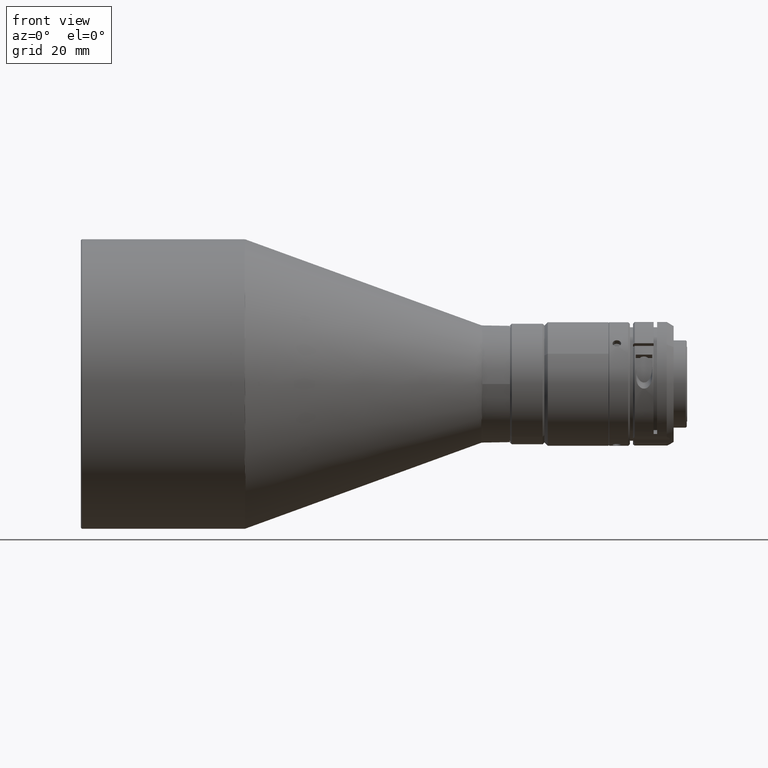
[diagram: clean part render]
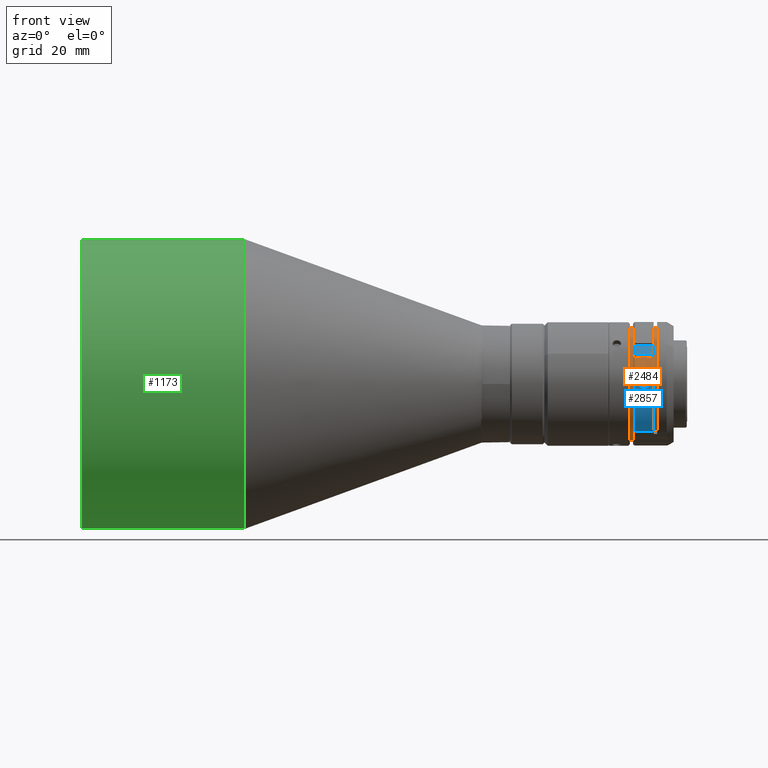
[diagram: same view with three faces highlighted in distinct colors, each labeled with its STEP entity id]
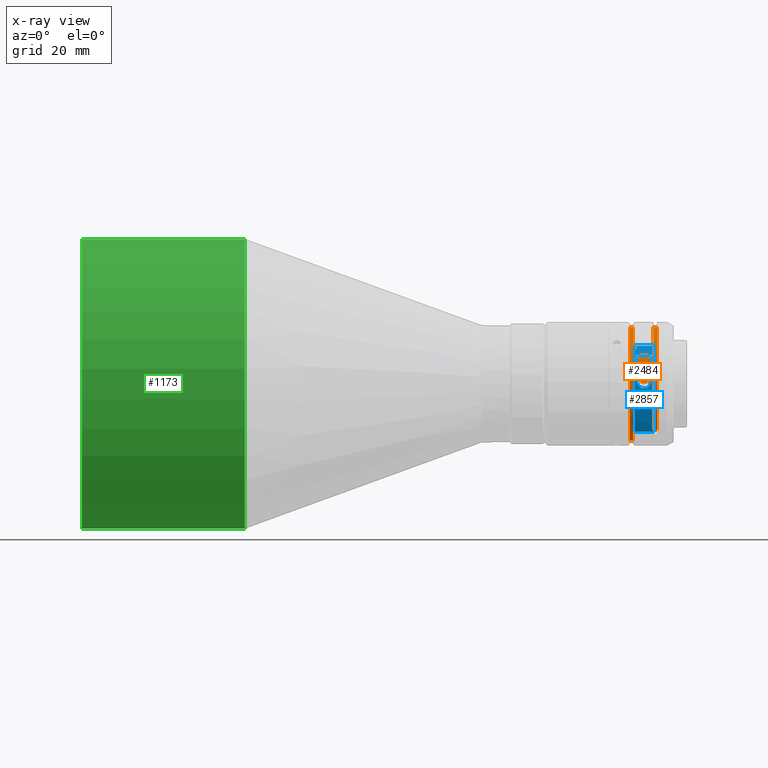
[diagram: x-ray of the same camera — body ghosted, the three highlighted faces saturated]
A machine part, front view with three faces highlighted in distinct colors.
The next image is the same camera in x-ray (body ghosted, the three faces saturated) — at least one of them is partly hidden behind the body in this view.
Their STEP definitions:

[orange] entity #2484 — the highlighted cylindrical surface (partial cylindrical patch) has radius 16.4872 mm, axis along (-1, -0, -0).
#25 = CARTESIAN_POINT ( 'NONE',  ( 159.3200000000000200, 2.019099587254256100E-015, -16.48719931869361600 ) ) ;
#35 = B_SPLINE_CURVE_WITH_KNOTS ( 'NONE', 3,
 ( #4201, #2227, #143, #130 ),
 .UNSPECIFIED., .F., .F.,
 ( 4, 4 ),
 ( 0.0000000000000000000, 0.003038825223688307700 ),
 .UNSPECIFIED. ) ;
#60 = CARTESIAN_POINT ( 'NONE',  ( 167.2200000000000000, 0.0000000000000000000, 16.48719931869361600 ) ) ;
#76 = EDGE_CURVE ( 'NONE', #4323, #2403, #2219, .T. ) ;
#122 = VECTOR ( 'NONE', #3050, 1000.000000000000000 ) ;
#127 = CARTESIAN_POINT ( 'NONE',  ( 164.5740415870512800, -16.46115465020259400, 0.9297886734848879200 ) ) ;
#130 = CARTESIAN_POINT ( 'NONE',  ( 164.6257721903837700, -14.65797262074225000, 7.547952041706538200 ) ) ;
#141 = CARTESIAN_POINT ( 'NONE',  ( 162.5286922909063800, -13.03375980337012100, 10.09697215814644400 ) ) ;
#143 = CARTESIAN_POINT ( 'NONE',  ( 164.4993311923400400, -14.19581476721842300, 8.445453393858962000 ) ) ;
#155 = VERTEX_POINT ( 'NONE', #288 ) ;
#156 = DIRECTION ( 'NONE',  ( 1.000000000000000000, 0.0000000000000000000, 0.0000000000000000000 ) ) ;
#187 = VERTEX_POINT ( 'NONE', #950 ) ;
#205 = CARTESIAN_POINT ( 'NONE',  ( 0.0000000000000000000, -14.65797262074225000, 7.547952041706537300 ) ) ;
#288 = CARTESIAN_POINT ( 'NONE',  ( 166.2199999982000000, -13.03375980337012200, 10.09697215814644800 ) ) ;
#291 = CARTESIAN_POINT ( 'NONE',  ( 0.0000000000000000000, 0.0000000000000000000, 16.48719931869361600 ) ) ;
#294 = CARTESIAN_POINT ( 'NONE',  ( 162.5286922909063800, -13.03375980337012100, 10.09697215814644400 ) ) ;
#303 = EDGE_CURVE ( 'NONE', #4193, #2052, #760, .T. ) ;
#327 = LINE ( 'NONE', #291, #4439 ) ;
#354 = ORIENTED_EDGE ( 'NONE', *, *, #1034, .T. ) ;
#358 = VERTEX_POINT ( 'NONE', #25 ) ;
#359 = DIRECTION ( 'NONE',  ( -1.000000000000000000, -0.0000000000000000000, -0.0000000000000000000 ) ) ;
#362 = DIRECTION ( 'NONE',  ( 0.0000000000000000000, 0.0000000000000000000, -1.000000000000000000 ) ) ;
#463 = CARTESIAN_POINT ( 'NONE',  ( 164.2746458527668900, -16.47251805357838000, 0.6981533381164485300 ) ) ;
#490 = LINE ( 'NONE', #205, #1797 ) ;
#501 = EDGE_CURVE ( 'NONE', #1315, #2762, #4321, .T. ) ;
#548 = VERTEX_POINT ( 'NONE', #3571 ) ;
#560 = DIRECTION ( 'NONE',  ( 0.0000000000000000000, 0.0000000000000000000, -1.000000000000000000 ) ) ;
#568 = CARTESIAN_POINT ( 'NONE',  ( 160.2200000000000000, -13.03375980337012200, 10.09697215814644800 ) ) ;
#571 = AXIS2_PLACEMENT_3D ( 'NONE', #3335, #638, #4036 ) ;
#626 = AXIS2_PLACEMENT_3D ( 'NONE', #894, #3603, #560 ) ;
#638 = DIRECTION ( 'NONE',  ( 1.000000000000000000, -0.0000000000000000000, 0.0000000000000000000 ) ) ;
#639 = VECTOR ( 'NONE', #1371, 1000.000000000000000 ) ;
#662 = ORIENTED_EDGE ( 'NONE', *, *, #1726, .T. ) ;
#668 = ORIENTED_EDGE ( 'NONE', *, *, #4030, .T. ) ;
#671 = CARTESIAN_POINT ( 'NONE',  ( 0.0000000000000000000, 2.019099587254256100E-015, -16.48719931869361600 ) ) ;
#711 = CARTESIAN_POINT ( 'NONE',  ( 164.6257721903837700, -14.65797262074225000, 7.547952041706538200 ) ) ;
#733 = EDGE_LOOP ( 'NONE', ( #842, #1377, #2412, #1492, #1141, #1877, #1380, #4317, #2880, #4351, #668, #3566, #2867, #991, #2721, #354, #2165, #3220, #862, #662 ) ) ;
#742 = VECTOR ( 'NONE', #156, 1000.000000000000000 ) ;
#760 = LINE ( 'NONE', #1359, #2383 ) ;
#778 = VERTEX_POINT ( 'NONE', #568 ) ;
#833 = CARTESIAN_POINT ( 'NONE',  ( 162.9472799859772700, -16.47914036335732700, 0.5162798844961608000 ) ) ;
#842 = ORIENTED_EDGE ( 'NONE', *, *, #3418, .F. ) ;
#849 = CARTESIAN_POINT ( 'NONE',  ( 163.3195510330318100, -16.48124270121820300, 0.4431530883863775700 ) ) ;
#857 = VECTOR ( 'NONE', #4373, 1000.000000000000000 ) ;
#862 = ORIENTED_EDGE ( 'NONE', *, *, #2888, .T. ) ;
#883 = CARTESIAN_POINT ( 'NONE',  ( 161.0200000000000100, -15.62801854515482500, 5.252882801531769500 ) ) ;
#894 = CARTESIAN_POINT ( 'NONE',  ( 160.2200000000000000, 0.0000000000000000000, 0.0000000000000000000 ) ) ;
#899 = DIRECTION ( 'NONE',  ( 0.0000000000000000000, 0.0000000000000000000, 1.000000000000000000 ) ) ;
#945 = EDGE_CURVE ( 'NONE', #548, #4323, #3059, .T. ) ;
#950 = CARTESIAN_POINT ( 'NONE',  ( 160.2200000000000000, 0.0000000000000000000, 16.48719931869361600 ) ) ;
#990 = CARTESIAN_POINT ( 'NONE',  ( 0.0000000000000000000, -14.65797262074225000, 7.547952041706537300 ) ) ;
#991 = ORIENTED_EDGE ( 'NONE', *, *, #3797, .T. ) ;
#1013 = AXIS2_PLACEMENT_3D ( 'NONE', #2037, #359, #4399 ) ;
#1034 = EDGE_CURVE ( 'NONE', #2149, #4193, #2020, .T. ) ;
#1090 = CARTESIAN_POINT ( 'NONE',  ( 165.6925591193513900, -16.14867244645946800, 3.359456579454701800 ) ) ;
#1099 = CARTESIAN_POINT ( 'NONE',  ( 164.3113077090936300, -13.03375980337012100, 10.09697215814644400 ) ) ;
#1141 = ORIENTED_EDGE ( 'NONE', *, *, #945, .F. ) ;
#1166 = EDGE_CURVE ( 'NONE', #4026, #778, #1960, .T. ) ;
#1188 = EDGE_CURVE ( 'NONE', #2052, #187, #2906, .T. ) ;
#1205 = VERTEX_POINT ( 'NONE', #1770 ) ;
#1298 = FACE_OUTER_BOUND ( 'NONE', #733, .T. ) ;
#1315 = VERTEX_POINT ( 'NONE', #1910 ) ;
#1318 = AXIS2_PLACEMENT_3D ( 'NONE', #1954, #3291, #899 ) ;
#1353 = CARTESIAN_POINT ( 'NONE',  ( 160.2200000000000000, 0.0000000000000000000, 0.0000000000000000000 ) ) ;
#1359 = CARTESIAN_POINT ( 'NONE',  ( 0.0000000000000000000, -12.39765437019051800, 10.86857430814305700 ) ) ;
#1371 = DIRECTION ( 'NONE',  ( -1.000000000000000000, -0.0000000000000000000, -0.0000000000000000000 ) ) ;
#1377 = ORIENTED_EDGE ( 'NONE', *, *, #1166, .T. ) ;
#1380 = ORIENTED_EDGE ( 'NONE', *, *, #1545, .F. ) ;
#1388 = DIRECTION ( 'NONE',  ( 0.0000000000000000000, 0.0000000000000000000, 1.000000000000000000 ) ) ;
#1391 = DIRECTION ( 'NONE',  ( -1.000000000000000000, -0.0000000000000000000, -0.0000000000000000000 ) ) ;
#1425 = CARTESIAN_POINT ( 'NONE',  ( 163.6956215938501500, -16.48065655091099300, 0.4656273447540606500 ) ) ;
#1481 = VERTEX_POINT ( 'NONE', #2354 ) ;
#1491 = CARTESIAN_POINT ( 'NONE',  ( 164.9135678973387400, -16.43682354117470400, 1.301769148797004700 ) ) ;
#1492 = ORIENTED_EDGE ( 'NONE', *, *, #76, .F. ) ;
#1494 = CARTESIAN_POINT ( 'NONE',  ( 162.2142278096162600, -14.65797262074225000, 7.547952041706538200 ) ) ;
#1541 = DIRECTION ( 'NONE',  ( 0.0000000000000000000, 0.0000000000000000000, 1.000000000000000000 ) ) ;
#1545 = EDGE_CURVE ( 'NONE', #2762, #2979, #2650, .T. ) ;
#1552 = CARTESIAN_POINT ( 'NONE',  ( 162.4902518448407100, -16.47135028845782000, 0.7317313870629339500 ) ) ;
#1560 = LINE ( 'NONE', #1876, #742 ) ;
#1561 = DIRECTION ( 'NONE',  ( 1.000000000000000000, -0.0000000000000000000, 0.0000000000000000000 ) ) ;
#1569 = CARTESIAN_POINT ( 'NONE',  ( 161.9539397515203200, -16.43971622478400000, 1.264250162738141300 ) ) ;
#1606 = CARTESIAN_POINT ( 'NONE',  ( 166.2200000000000000, 0.0000000000000000000, 16.48719931869361600 ) ) ;
#1616 = LINE ( 'NONE', #671, #639 ) ;
#1642 = AXIS2_PLACEMENT_3D ( 'NONE', #1353, #3052, #362 ) ;
#1654 = CARTESIAN_POINT ( 'NONE',  ( 0.0000000000000000000, 0.0000000000000000000, 16.48719931869361600 ) ) ;
#1726 = EDGE_CURVE ( 'NONE', #1481, #358, #2023, .T. ) ;
#1741 = CARTESIAN_POINT ( 'NONE',  ( 0.0000000000000000000, 0.0000000000000000000, 0.0000000000000000000 ) ) ;
#1757 = AXIS2_PLACEMENT_3D ( 'NONE', #2579, #1561, #1541 ) ;
#1770 = CARTESIAN_POINT ( 'NONE',  ( 167.2200000000000000, -9.696686251931646800, -13.33424227715737600 ) ) ;
#1784 = EDGE_CURVE ( 'NONE', #155, #3077, #2585, .T. ) ;
#1788 = CARTESIAN_POINT ( 'NONE',  ( 164.0540896062212300, -16.47712059967436500, 0.5794530634791420500 ) ) ;
#1797 = VECTOR ( 'NONE', #2946, 1000.000000000000000 ) ;
#1858 = DIRECTION ( 'NONE',  ( -1.000000000000000000, -0.0000000000000000000, -0.0000000000000000000 ) ) ;
#1876 = CARTESIAN_POINT ( 'NONE',  ( 0.0000000000000000000, -13.03375980337012200, 10.09697215814644800 ) ) ;
#1877 = ORIENTED_EDGE ( 'NONE', *, *, #3112, .F. ) ;
#1891 = CARTESIAN_POINT ( 'NONE',  ( 163.5692598444627800, -16.48113120635038300, 0.4472804436459118500 ) ) ;
#1907 = CARTESIAN_POINT ( 'NONE',  ( 161.3234726455134800, -16.28098041682922000, 2.610213299569115600 ) ) ;
#1910 = CARTESIAN_POINT ( 'NONE',  ( 165.8199999999999900, -14.65797262074225000, 7.547952041706537300 ) ) ;
#1954 = CARTESIAN_POINT ( 'NONE',  ( 159.3200000000000200, 0.0000000000000000000, 0.0000000000000000000 ) ) ;
#1960 = CIRCLE ( 'NONE', #626, 16.48719931869361600 ) ;
#2020 = CIRCLE ( 'NONE', #2422, 16.48719931869361600 ) ;
#2023 = CIRCLE ( 'NONE', #1318, 16.48719931869361600 ) ;
#2037 = CARTESIAN_POINT ( 'NONE',  ( 167.2200000000000000, 0.0000000000000000000, 0.0000000000000000000 ) ) ;
#2052 = VERTEX_POINT ( 'NONE', #4121 ) ;
#2132 = CARTESIAN_POINT ( 'NONE',  ( 0.0000000000000000000, -13.03375980337012200, 10.09697215814644800 ) ) ;
#2149 = VERTEX_POINT ( 'NONE', #1606 ) ;
#2165 = ORIENTED_EDGE ( 'NONE', *, *, #303, .T. ) ;
#2169 = CARTESIAN_POINT ( 'NONE',  ( 162.4912678220206900, -13.65768881026271600, 9.291568252616986700 ) ) ;
#2192 = CARTESIAN_POINT ( 'NONE',  ( 164.6635649561914900, -16.45603367268156000, 1.017695708175464700 ) ) ;
#2219 = B_SPLINE_CURVE_WITH_KNOTS ( 'NONE', 3,
 ( #1494, #2504, #2169, #141 ),
 .UNSPECIFIED., .F., .F.,
 ( 4, 4 ),
 ( 1.734723475976807100E-018, 0.003038825223688309000 ),
 .UNSPECIFIED. ) ;
#2227 = CARTESIAN_POINT ( 'NONE',  ( 164.3487321779793100, -13.65768881026271800, 9.291568252616986700 ) ) ;
#2248 = CARTESIAN_POINT ( 'NONE',  ( 162.8296302135859400, -16.47777283508363400, 0.5603670342746505100 ) ) ;
#2312 = EDGE_CURVE ( 'NONE', #3850, #1315, #490, .T. ) ;
#2354 = CARTESIAN_POINT ( 'NONE',  ( 159.3200000000000200, 0.0000000000000000000, 16.48719931869361600 ) ) ;
#2383 = VECTOR ( 'NONE', #1391, 1000.000000000000000 ) ;
#2394 = CARTESIAN_POINT ( 'NONE',  ( 0.0000000000000000000, -9.696686251931646800, -13.33424227715737600 ) ) ;
#2403 = VERTEX_POINT ( 'NONE', #294 ) ;
#2412 = ORIENTED_EDGE ( 'NONE', *, *, #3049, .T. ) ;
#2422 = AXIS2_PLACEMENT_3D ( 'NONE', #3776, #3809, #2734 ) ;
#2433 = CARTESIAN_POINT ( 'NONE',  ( 166.2200000000000000, -9.696686251931648600, -13.33424227715737600 ) ) ;
#2484 = ADVANCED_FACE ( 'NONE', ( #1298 ), #3472, .T. ) ;
#2504 = CARTESIAN_POINT ( 'NONE',  ( 162.3406688076599900, -14.19581476721841700, 8.445453393858958400 ) ) ;
#2518 = CARTESIAN_POINT ( 'NONE',  ( 164.3801784602484600, -16.46938961112883600, 0.7702760752280644100 ) ) ;
#2524 = DIRECTION ( 'NONE',  ( 0.0000000000000000000, -2.664535259100375700E-015, -1.000000000000000000 ) ) ;
#2541 = CARTESIAN_POINT ( 'NONE',  ( 160.2200000000000000, 2.019099587254256100E-015, -16.48719931869361600 ) ) ;
#2560 = CARTESIAN_POINT ( 'NONE',  ( 163.1927002568686800, -16.48088275312977300, 0.4572917142890949900 ) ) ;
#2579 = CARTESIAN_POINT ( 'NONE',  ( 165.8199999999999900, 0.0000000000000000000, 0.0000000000000000000 ) ) ;
#2585 = CIRCLE ( 'NONE', #571, 16.48719931869361600 ) ;
#2588 = CARTESIAN_POINT ( 'NONE',  ( 165.8199999999999900, -15.62801854474298400, 5.252882802757042700 ) ) ;
#2650 = B_SPLINE_CURVE_WITH_KNOTS ( 'NONE', 3,
 ( #4196, #4217, #3813, #1090, #3517, #3461, #3196, #3178, #1491, #2192, #127, #2518, #463, #1788, #2856, #1425, #1891, #849, #2560, #833, #2248, #1552, #3932, #1569, #3216, #4247, #2905, #1907, #3886, #4260, #2939, #3230, #3949, #883 ),
 .UNSPECIFIED., .F., .F.,
 ( 4, 2, 2, 2, 2, 2, 2, 2, 2, 2, 2, 2, 2, 2, 2, 2, 4 ),
 ( 4.261811985158505700E-012, 0.001471715567212966200, 0.002943431130164118900, 0.003679288911639684100, 0.004415146693115248400, 0.004783075583853004500, 0.005151004474590760600, 0.005518933365328516700, 0.005886862256066272000, 0.006254791146804028100, 0.006622720037541783400, 0.007358577819017296500, 0.008094435600492807000, 0.008830293381968317600, 0.009566151163443829800, 0.01030200894491934200, 0.01177372450787036800 ),
 .UNSPECIFIED. ) ;
#2721 = ORIENTED_EDGE ( 'NONE', *, *, #3728, .T. ) ;
#2727 = CIRCLE ( 'NONE', #1013, 16.48719931869361600 ) ;
#2734 = DIRECTION ( 'NONE',  ( 0.0000000000000000000, 0.0000000000000000000, 1.000000000000000000 ) ) ;
#2749 = CARTESIAN_POINT ( 'NONE',  ( 161.0200000000000100, -15.62801854515482500, 5.252882801531769500 ) ) ;
#2750 = DIRECTION ( 'NONE',  ( 1.000000000000000000, 0.0000000000000000000, 0.0000000000000000000 ) ) ;
#2762 = VERTEX_POINT ( 'NONE', #2588 ) ;
#2781 = LINE ( 'NONE', #2132, #4116 ) ;
#2856 = CARTESIAN_POINT ( 'NONE',  ( 163.9386196743382100, -16.47864225461139000, 0.5321640891720256200 ) ) ;
#2867 = ORIENTED_EDGE ( 'NONE', *, *, #3823, .T. ) ;
#2880 = ORIENTED_EDGE ( 'NONE', *, *, #2312, .F. ) ;
#2888 = EDGE_CURVE ( 'NONE', #187, #1481, #3803, .T. ) ;
#2905 = CARTESIAN_POINT ( 'NONE',  ( 161.4811693021302400, -16.34907532609872400, 2.142725550315296000 ) ) ;
#2906 = CIRCLE ( 'NONE', #1642, 16.48719931869361600 ) ;
#2939 = CARTESIAN_POINT ( 'NONE',  ( 161.1236427700644400, -16.09743347043194800, 3.572409752070579100 ) ) ;
#2946 = DIRECTION ( 'NONE',  ( 1.000000000000000000, 0.0000000000000000000, 0.0000000000000000000 ) ) ;
#2976 = VERTEX_POINT ( 'NONE', #60 ) ;
#2979 = VERTEX_POINT ( 'NONE', #2749 ) ;
#3049 = EDGE_CURVE ( 'NONE', #778, #2403, #2781, .T. ) ;
#3050 = DIRECTION ( 'NONE',  ( 1.000000000000000000, 0.0000000000000000000, 0.0000000000000000000 ) ) ;
#3052 = DIRECTION ( 'NONE',  ( -1.000000000000000000, -0.0000000000000000000, -0.0000000000000000000 ) ) ;
#3059 = LINE ( 'NONE', #990, #122 ) ;
#3073 = CARTESIAN_POINT ( 'NONE',  ( 162.2142278096162600, -14.65797262074225000, 7.547952041706538200 ) ) ;
#3077 = VERTEX_POINT ( 'NONE', #2433 ) ;
#3112 = EDGE_CURVE ( 'NONE', #2979, #548, #3523, .T. ) ;
#3178 = CARTESIAN_POINT ( 'NONE',  ( 165.0495151047157100, -16.41931342295349000, 1.510666007852637000 ) ) ;
#3196 = CARTESIAN_POINT ( 'NONE',  ( 165.2785695789043200, -16.37325363820094600, 1.947442006222969100 ) ) ;
#3216 = CARTESIAN_POINT ( 'NONE',  ( 161.8148409992556700, -16.42294023502109500, 1.470942681670688100 ) ) ;
#3220 = ORIENTED_EDGE ( 'NONE', *, *, #1188, .T. ) ;
#3230 = CARTESIAN_POINT ( 'NONE',  ( 161.0392933284081200, -15.92499510575483000, 4.297581860230011800 ) ) ;
#3291 = DIRECTION ( 'NONE',  ( 1.000000000000000000, -0.0000000000000000000, -0.0000000000000000000 ) ) ;
#3335 = CARTESIAN_POINT ( 'NONE',  ( 166.2200000000000000, 0.0000000000000000000, 0.0000000000000000000 ) ) ;
#3418 = EDGE_CURVE ( 'NONE', #4026, #358, #1616, .T. ) ;
#3425 = DIRECTION ( 'NONE',  ( 1.000000000000000000, 0.0000000000000000000, 0.0000000000000000000 ) ) ;
#3461 = CARTESIAN_POINT ( 'NONE',  ( 165.3724684020448600, -16.34445239753715700, 2.177909948666505900 ) ) ;
#3472 = CYLINDRICAL_SURFACE ( 'NONE', #4122, 16.48719931869361600 ) ;
#3517 = CARTESIAN_POINT ( 'NONE',  ( 165.6050296421245200, -16.23990831539737900, 2.884409378699208700 ) ) ;
#3523 = CIRCLE ( 'NONE', #3722, 16.48719931869361600 ) ;
#3539 = EDGE_CURVE ( 'NONE', #4424, #3850, #35, .T. ) ;
#3566 = ORIENTED_EDGE ( 'NONE', *, *, #1784, .T. ) ;
#3571 = CARTESIAN_POINT ( 'NONE',  ( 161.0200000000000100, -14.65797262074225000, 7.547952041706537300 ) ) ;
#3603 = DIRECTION ( 'NONE',  ( -1.000000000000000000, -0.0000000000000000000, -0.0000000000000000000 ) ) ;
#3722 = AXIS2_PLACEMENT_3D ( 'NONE', #3878, #1858, #2524 ) ;
#3728 = EDGE_CURVE ( 'NONE', #2976, #2149, #327, .T. ) ;
#3776 = CARTESIAN_POINT ( 'NONE',  ( 166.2200000000000000, 0.0000000000000000000, 0.0000000000000000000 ) ) ;
#3797 = EDGE_CURVE ( 'NONE', #1205, #2976, #2727, .T. ) ;
#3803 = LINE ( 'NONE', #1654, #857 ) ;
#3809 = DIRECTION ( 'NONE',  ( 1.000000000000000000, -0.0000000000000000000, 0.0000000000000000000 ) ) ;
#3813 = CARTESIAN_POINT ( 'NONE',  ( 165.8009142782937900, -15.92187349370786900, 4.308075526571410100 ) ) ;
#3823 = EDGE_CURVE ( 'NONE', #3077, #1205, #4278, .T. ) ;
#3850 = VERTEX_POINT ( 'NONE', #711 ) ;
#3878 = CARTESIAN_POINT ( 'NONE',  ( 161.0200000000000100, 0.0000000000000000000, 0.0000000000000000000 ) ) ;
#3886 = CARTESIAN_POINT ( 'NONE',  ( 161.2613282302976900, -16.24119807768848400, 2.848005814906239500 ) ) ;
#3932 = CARTESIAN_POINT ( 'NONE',  ( 162.2939820525080600, -16.46412942217311200, 0.8916503773023122200 ) ) ;
#3949 = CARTESIAN_POINT ( 'NONE',  ( 161.0200000000344900, -15.78776709956517300, 4.777609800931291100 ) ) ;
#3992 = DIRECTION ( 'NONE',  ( -1.000000000000000000, -0.0000000000000000000, -0.0000000000000000000 ) ) ;
#4026 = VERTEX_POINT ( 'NONE', #2541 ) ;
#4030 = EDGE_CURVE ( 'NONE', #4424, #155, #1560, .T. ) ;
#4036 = DIRECTION ( 'NONE',  ( 0.0000000000000000000, 0.0000000000000000000, 1.000000000000000000 ) ) ;
#4116 = VECTOR ( 'NONE', #3425, 1000.000000000000000 ) ;
#4121 = CARTESIAN_POINT ( 'NONE',  ( 160.2200000000000000, -12.39765438103296400, 10.86857429577520200 ) ) ;
#4122 = AXIS2_PLACEMENT_3D ( 'NONE', #1741, #4432, #1388 ) ;
#4193 = VERTEX_POINT ( 'NONE', #4393 ) ;
#4196 = CARTESIAN_POINT ( 'NONE',  ( 165.8199999999999900, -15.62801854474298400, 5.252882802757042700 ) ) ;
#4201 = CARTESIAN_POINT ( 'NONE',  ( 164.3113077090936300, -13.03375980337012100, 10.09697215814644400 ) ) ;
#4217 = CARTESIAN_POINT ( 'NONE',  ( 165.8200000001140200, -15.78632913862138000, 4.781887924760269500 ) ) ;
#4247 = CARTESIAN_POINT ( 'NONE',  ( 161.5776475154608000, -16.37758339373971900, 1.910863814335346900 ) ) ;
#4260 = CARTESIAN_POINT ( 'NONE',  ( 161.1613589843779800, -16.14949696536772100, 3.328873666276728600 ) ) ;
#4278 = LINE ( 'NONE', #2394, #4433 ) ;
#4317 = ORIENTED_EDGE ( 'NONE', *, *, #501, .F. ) ;
#4321 = CIRCLE ( 'NONE', #1757, 16.48719931869361600 ) ;
#4323 = VERTEX_POINT ( 'NONE', #3073 ) ;
#4351 = ORIENTED_EDGE ( 'NONE', *, *, #3539, .F. ) ;
#4373 = DIRECTION ( 'NONE',  ( -1.000000000000000000, -0.0000000000000000000, -0.0000000000000000000 ) ) ;
#4393 = CARTESIAN_POINT ( 'NONE',  ( 166.2200000000000000, -12.39765437019051600, 10.86857430814305500 ) ) ;
#4399 = DIRECTION ( 'NONE',  ( 0.0000000000000000000, 0.0000000000000000000, -1.000000000000000000 ) ) ;
#4424 = VERTEX_POINT ( 'NONE', #1099 ) ;
#4432 = DIRECTION ( 'NONE',  ( -1.000000000000000000, -0.0000000000000000000, -0.0000000000000000000 ) ) ;
#4433 = VECTOR ( 'NONE', #2750, 1000.000000000000000 ) ;
#4439 = VECTOR ( 'NONE', #3992, 1000.000000000000000 ) ;

[blue] entity #2857 — the highlighted cylindrical surface (partial cylindrical patch) has radius 18 mm, axis along (-1, 0, 0).
#11 = LINE ( 'NONE', #3245, #3635 ) ;
#104 = CARTESIAN_POINT ( 'NONE',  ( 163.8446297666830600, -17.95347758864933100, -1.295708654358598700 ) ) ;
#116 = CARTESIAN_POINT ( 'NONE',  ( 164.4296203718487600, -17.97130105658079900, -1.025264389598634900 ) ) ;
#129 = VERTEX_POINT ( 'NONE', #2690 ) ;
#132 = CARTESIAN_POINT ( 'NONE',  ( 164.7590153662531200, -17.98484314154965000, -0.7511630373598092700 ) ) ;
#138 = DIRECTION ( 'NONE',  ( -1.000000000000000000, 3.065186189258494200E-017, 3.718101010314700000E-017 ) ) ;
#217 = CARTESIAN_POINT ( 'NONE',  ( 165.5281410166115000, -17.99672367518818200, 0.5152064143788192000 ) ) ;
#370 = DIRECTION ( 'NONE',  ( 1.000000000000000000, -3.065186189258494200E-017, -3.718101010314700000E-017 ) ) ;
#394 = EDGE_CURVE ( 'NONE', #1600, #3403, #1131, .T. ) ;
#409 = CARTESIAN_POINT ( 'NONE',  ( 163.2030278698764500, -17.95029606407543100, -1.336739046783440600 ) ) ;
#476 = LINE ( 'NONE', #3924, #1672 ) ;
#478 = DIRECTION ( 'NONE',  ( -1.000000000000000000, -0.0000000000000000000, -0.0000000000000000000 ) ) ;
#534 = CIRCLE ( 'NONE', #581, 18.00000000000000700 ) ;
#553 = CARTESIAN_POINT ( 'NONE',  ( 165.6452336195875400, -17.98071982346806800, 0.9315014919335826700 ) ) ;
#581 = AXIS2_PLACEMENT_3D ( 'NONE', #602, #4039, #3567 ) ;
#602 = CARTESIAN_POINT ( 'NONE',  ( 161.0200000045000200, 2.758667568953311400E-016, 3.346290907610085900E-016 ) ) ;
#637 = CARTESIAN_POINT ( 'NONE',  ( 165.8200000010499800, -17.81041127891607100, 2.605618942949880200 ) ) ;
#655 = AXIS2_PLACEMENT_3D ( 'NONE', #1824, #3877, #1138 ) ;
#694 = CARTESIAN_POINT ( 'NONE',  ( 161.0200000022500100, -17.81041127947618800, 2.605618939121283200 ) ) ;
#740 = DIRECTION ( 'NONE',  ( 0.0000000000000000000, 0.6361054331796055500, 0.7716021499966070300 ) ) ;
#830 = AXIS2_PLACEMENT_3D ( 'NONE', #4157, #138, #2235 ) ;
#931 = CARTESIAN_POINT ( 'NONE',  ( 161.0200000022500100, -17.81041127947618800, 2.605618939121283200 ) ) ;
#932 = EDGE_CURVE ( 'NONE', #3825, #4251, #1897, .T. ) ;
#998 = DIRECTION ( 'NONE',  ( 0.0000000000000000000, 0.6361054331796055500, 0.7716021499966070300 ) ) ;
#1004 = ORIENTED_EDGE ( 'NONE', *, *, #1069, .F. ) ;
#1014 = CARTESIAN_POINT ( 'NONE',  ( 161.9383510115916900, -17.99104309243919200, -0.5934329940893073900 ) ) ;
#1017 = CARTESIAN_POINT ( 'NONE',  ( 170.0200000000000100, 0.0000000000000000000, 0.0000000000000000000 ) ) ;
#1068 = CYLINDRICAL_SURFACE ( 'NONE', #1507, 18.00000000000000400 ) ;
#1069 = EDGE_CURVE ( 'NONE', #2247, #1600, #11, .T. ) ;
#1131 = CIRCLE ( 'NONE', #655, 18.00000000000000400 ) ;
#1138 = DIRECTION ( 'NONE',  ( 0.0000000000000000000, 0.7716021499966070300, -0.6361054331796055500 ) ) ;
#1150 = ORIENTED_EDGE ( 'NONE', *, *, #394, .F. ) ;
#1153 = ORIENTED_EDGE ( 'NONE', *, *, #3707, .F. ) ;
#1392 = CARTESIAN_POINT ( 'NONE',  ( 166.2199999956999900, 1.164770753236257800E-016, 1.412878385518369500E-016 ) ) ;
#1498 = VERTEX_POINT ( 'NONE', #2051 ) ;
#1507 = AXIS2_PLACEMENT_3D ( 'NONE', #1017, #4080, #998 ) ;
#1540 = ORIENTED_EDGE ( 'NONE', *, *, #2949, .F. ) ;
#1600 = VERTEX_POINT ( 'NONE', #3594 ) ;
#1624 = FACE_OUTER_BOUND ( 'NONE', #4047, .T. ) ;
#1632 = EDGE_CURVE ( 'NONE', #1498, #129, #3109, .T. ) ;
#1672 = VECTOR ( 'NONE', #2018, 1000.000000000000000 ) ;
#1688 = CARTESIAN_POINT ( 'NONE',  ( 166.2199999956999900, -14.20153203603661900, 11.05967846862763800 ) ) ;
#1727 = CARTESIAN_POINT ( 'NONE',  ( 161.6878872642247400, -17.99911491975408500, -0.2483070235886900600 ) ) ;
#1775 = CARTESIAN_POINT ( 'NONE',  ( 166.2199999956999900, -11.44989779723289800, -13.88883869993892800 ) ) ;
#1824 = CARTESIAN_POINT ( 'NONE',  ( 160.7200000000000000, 0.0000000000000000000, 0.0000000000000000000 ) ) ;
#1868 = CARTESIAN_POINT ( 'NONE',  ( 164.9015138907262500, -17.99104067477618700, -0.5936681546033696400 ) ) ;
#1897 = B_SPLINE_CURVE_WITH_KNOTS ( 'NONE', 3,
 ( #931, #3332, #2030, #2716, #4389, #3070, #1727, #1014, #2416, #3791, #2819, #3120, #409, #2803, #104, #3168, #116, #132, #1868, #2593, #3968, #217, #553, #3979, #4322, #3311 ),
 .UNSPECIFIED., .F., .F.,
 ( 4, 2, 2, 2, 2, 2, 2, 2, 2, 2, 2, 2, 4 ),
 ( 6.566259535918892800E-012, 0.001266805065406357800, 0.002533610124246456400, 0.003167012653666523100, 0.003800415183086589400, 0.004433817712506656600, 0.005067220241926723300, 0.005700622771346790100, 0.006334025300766856800, 0.006967427830186924400, 0.007600830359606991100, 0.008867635418447089900, 0.01013444047728718900 ),
 .UNSPECIFIED. ) ;
#1976 = AXIS2_PLACEMENT_3D ( 'NONE', #1392, #370, #740 ) ;
#2015 = VECTOR ( 'NONE', #478, 1000.000000000000000 ) ;
#2018 = DIRECTION ( 'NONE',  ( 1.000000000000000000, -0.0000000000000000000, 0.0000000000000000000 ) ) ;
#2030 = CARTESIAN_POINT ( 'NONE',  ( 161.0497057696050000, -17.91821156932437000, 1.763827378813243000 ) ) ;
#2051 = CARTESIAN_POINT ( 'NONE',  ( 165.8200000021000200, -15.85011884489772500, 8.530752170976377600 ) ) ;
#2235 = DIRECTION ( 'NONE',  ( 0.0000000000000000000, 0.6361054331796055500, 0.7716021499966070300 ) ) ;
#2247 = VERTEX_POINT ( 'NONE', #1775 ) ;
#2357 = ORIENTED_EDGE ( 'NONE', *, *, #932, .F. ) ;
#2416 = CARTESIAN_POINT ( 'NONE',  ( 162.0806901089938200, -17.98485484815375900, -0.7509587438873490700 ) ) ;
#2430 = CIRCLE ( 'NONE', #830, 18.00000000000000400 ) ;
#2531 = CARTESIAN_POINT ( 'NONE',  ( 165.3699999999999800, -15.85011884372284500, 8.530752173159307000 ) ) ;
#2570 = EDGE_CURVE ( 'NONE', #4251, #1498, #2430, .T. ) ;
#2574 = CIRCLE ( 'NONE', #1976, 18.00000000000000400 ) ;
#2593 = CARTESIAN_POINT ( 'NONE',  ( 165.1527129731774200, -17.99913232413235100, -0.2474308340032173900 ) ) ;
#2690 = CARTESIAN_POINT ( 'NONE',  ( 161.0200000022500100, -15.85011884567113300, 8.530752170038224900 ) ) ;
#2716 = CARTESIAN_POINT ( 'NONE',  ( 161.1943604711551400, -17.98060717629776300, 0.9333586861385647600 ) ) ;
#2728 = CARTESIAN_POINT ( 'NONE',  ( 160.7200000000000000, -14.20153203608750300, 11.05967846866958700 ) ) ;
#2803 = CARTESIAN_POINT ( 'NONE',  ( 163.6329701456431800, -17.95025756864064400, -1.337255879260437200 ) ) ;
#2819 = CARTESIAN_POINT ( 'NONE',  ( 162.5930896688086600, -17.96417501451460600, -1.137821038105735600 ) ) ;
#2857 = ADVANCED_FACE ( 'NONE', ( #1624, #3310 ), #1068, .T. ) ;
#2949 = EDGE_CURVE ( 'NONE', #3845, #2247, #2574, .T. ) ;
#3070 = CARTESIAN_POINT ( 'NONE',  ( 161.5807920323128100, -18.00092742019381500, -0.06098599065459001800 ) ) ;
#3109 = LINE ( 'NONE', #2531, #2015 ) ;
#3120 = CARTESIAN_POINT ( 'NONE',  ( 162.9936194219142700, -17.95351415236060100, -1.295202782522628000 ) ) ;
#3168 = CARTESIAN_POINT ( 'NONE',  ( 164.2460108662269000, -17.96414110212139900, -1.138355351455030200 ) ) ;
#3245 = CARTESIAN_POINT ( 'NONE',  ( 170.0200000000000100, -11.44989779723290000, -13.88883869993893100 ) ) ;
#3310 = FACE_BOUND ( 'NONE', #3348, .T. ) ;
#3311 = CARTESIAN_POINT ( 'NONE',  ( 165.8200000010499800, -17.81041127891607100, 2.605618942949880200 ) ) ;
#3332 = CARTESIAN_POINT ( 'NONE',  ( 161.0199999997407500, -17.87217445881633200, 2.183443767319153600 ) ) ;
#3348 = EDGE_LOOP ( 'NONE', ( #2357, #4007, #3650, #4042 ) ) ;
#3403 = VERTEX_POINT ( 'NONE', #2728 ) ;
#3567 = DIRECTION ( 'NONE',  ( 0.0000000000000000000, 0.6361054331796067700, 0.7716021499966058100 ) ) ;
#3594 = CARTESIAN_POINT ( 'NONE',  ( 160.7200000000000000, -11.44989779723289800, -13.88883869993892800 ) ) ;
#3596 = EDGE_CURVE ( 'NONE', #129, #3825, #534, .T. ) ;
#3635 = VECTOR ( 'NONE', #3870, 1000.000000000000000 ) ;
#3650 = ORIENTED_EDGE ( 'NONE', *, *, #1632, .F. ) ;
#3707 = EDGE_CURVE ( 'NONE', #3403, #3845, #476, .T. ) ;
#3791 = CARTESIAN_POINT ( 'NONE',  ( 162.4111805210608000, -17.97126853278821200, -1.025889987570194600 ) ) ;
#3825 = VERTEX_POINT ( 'NONE', #694 ) ;
#3845 = VERTEX_POINT ( 'NONE', #1688 ) ;
#3870 = DIRECTION ( 'NONE',  ( -1.000000000000000000, 3.065186189258494200E-017, 3.718101010314700000E-017 ) ) ;
#3877 = DIRECTION ( 'NONE',  ( -1.000000000000000000, 0.0000000000000000000, -0.0000000000000000000 ) ) ;
#3924 = CARTESIAN_POINT ( 'NONE',  ( 165.3699999999999800, -14.20153203783933200, 11.05967846631280500 ) ) ;
#3968 = CARTESIAN_POINT ( 'NONE',  ( 165.2592315941426800, -18.00092138071918800, -0.06086557147332401900 ) ) ;
#3979 = CARTESIAN_POINT ( 'NONE',  ( 165.7902984925294200, -17.91827199658565600, 1.763380008933576300 ) ) ;
#4007 = ORIENTED_EDGE ( 'NONE', *, *, #3596, .F. ) ;
#4039 = DIRECTION ( 'NONE',  ( 1.000000000000000000, -3.065186189258494200E-017, -3.718101010314700000E-017 ) ) ;
#4042 = ORIENTED_EDGE ( 'NONE', *, *, #2570, .F. ) ;
#4047 = EDGE_LOOP ( 'NONE', ( #1004, #1540, #1153, #1150 ) ) ;
#4080 = DIRECTION ( 'NONE',  ( -1.000000000000000000, 3.065186189258494200E-017, 3.718101010314700000E-017 ) ) ;
#4157 = CARTESIAN_POINT ( 'NONE',  ( 165.8200000021000200, 1.287378198844878300E-016, 1.561602423551372400E-016 ) ) ;
#4251 = VERTEX_POINT ( 'NONE', #637 ) ;
#4322 = CARTESIAN_POINT ( 'NONE',  ( 165.8200000002883900, -17.87218748154824900, 2.183354752019652800 ) ) ;
#4389 = CARTESIAN_POINT ( 'NONE',  ( 161.3111355619710700, -17.99670101982255200, 0.5168960395316819500 ) ) ;

[green] entity #1173 — the highlighted cylindrical surface (partial cylindrical patch) has radius 42 mm, axis along (-1, 0, 0).
#177 = CARTESIAN_POINT ( 'NONE',  ( 47.46041055200000600, 5.143516556418883300E-015, -42.00000000000000000 ) ) ;
#202 = CARTESIAN_POINT ( 'NONE',  ( 47.46041055261320500, -4.307171998821954500E-009, -41.99999999999982900 ) ) ;
#353 = ORIENTED_EDGE ( 'NONE', *, *, #3639, .F. ) ;
#601 = CIRCLE ( 'NONE', #2002, 41.99999999999999300 ) ;
#625 = VERTEX_POINT ( 'NONE', #202 ) ;
#685 = CARTESIAN_POINT ( 'NONE',  ( 47.46041055261317600, 0.0000000000000000000, 0.0000000000000000000 ) ) ;
#695 = CYLINDRICAL_SURFACE ( 'NONE', #3866, 42.00000000000000000 ) ;
#727 = VERTEX_POINT ( 'NONE', #4154 ) ;
#728 = ORIENTED_EDGE ( 'NONE', *, *, #2487, .F. ) ;
#731 = EDGE_CURVE ( 'NONE', #727, #2924, #601, .T. ) ;
#936 = DIRECTION ( 'NONE',  ( 0.0000000000000000000, 0.0000000000000000000, 1.000000000000000000 ) ) ;
#965 = CARTESIAN_POINT ( 'NONE',  ( 47.46041055245989800, 0.0000000000000000000, 41.99999999999982900 ) ) ;
#973 = FACE_OUTER_BOUND ( 'NONE', #1909, .T. ) ;
#1018 = LINE ( 'NONE', #177, #1228 ) ;
#1024 = DIRECTION ( 'NONE',  ( 1.000000000000000000, -8.260587980822767000E-017, -0.0000000000000000000 ) ) ;
#1173 = ADVANCED_FACE ( 'NONE', ( #973 ), #695, .T. ) ;
#1219 = DIRECTION ( 'NONE',  ( 0.0000000000000000000, 0.0000000000000000000, 1.000000000000000000 ) ) ;
#1228 = VECTOR ( 'NONE', #3018, 1000.000000000000000 ) ;
#1241 = DIRECTION ( 'NONE',  ( -1.000000000000000000, 0.0000000000000000000, 0.0000000000000000000 ) ) ;
#1308 = DIRECTION ( 'NONE',  ( -1.000000000000000000, 0.0000000000000000000, 0.0000000000000000000 ) ) ;
#1909 = EDGE_LOOP ( 'NONE', ( #353, #728, #3508, #3609 ) ) ;
#2002 = AXIS2_PLACEMENT_3D ( 'NONE', #3294, #1241, #936 ) ;
#2222 = EDGE_CURVE ( 'NONE', #2947, #2924, #4124, .T. ) ;
#2291 = CARTESIAN_POINT ( 'NONE',  ( 47.46041055200000600, 0.0000000000000000000, 0.0000000000000000000 ) ) ;
#2487 = EDGE_CURVE ( 'NONE', #2947, #625, #3155, .T. ) ;
#2758 = DIRECTION ( 'NONE',  ( 0.0000000000000000000, 1.000000000000000000, 0.0000000000000000000 ) ) ;
#2841 = AXIS2_PLACEMENT_3D ( 'NONE', #685, #1024, #2758 ) ;
#2924 = VERTEX_POINT ( 'NONE', #4392 ) ;
#2947 = VERTEX_POINT ( 'NONE', #965 ) ;
#2961 = DIRECTION ( 'NONE',  ( -1.000000000000000000, 0.0000000000000000000, 0.0000000000000000000 ) ) ;
#3018 = DIRECTION ( 'NONE',  ( -1.000000000000000000, 0.0000000000000000000, 0.0000000000000000000 ) ) ;
#3155 = CIRCLE ( 'NONE', #2841, 41.99999999999977300 ) ;
#3294 = CARTESIAN_POINT ( 'NONE',  ( 0.3000000000000000400, 0.0000000000000000000, 0.0000000000000000000 ) ) ;
#3508 = ORIENTED_EDGE ( 'NONE', *, *, #2222, .T. ) ;
#3609 = ORIENTED_EDGE ( 'NONE', *, *, #731, .F. ) ;
#3639 = EDGE_CURVE ( 'NONE', #625, #727, #1018, .T. ) ;
#3807 = VECTOR ( 'NONE', #1308, 1000.000000000000000 ) ;
#3866 = AXIS2_PLACEMENT_3D ( 'NONE', #2291, #2961, #1219 ) ;
#4087 = CARTESIAN_POINT ( 'NONE',  ( 47.46041055200000600, 0.0000000000000000000, 42.00000000000000000 ) ) ;
#4124 = LINE ( 'NONE', #4087, #3807 ) ;
#4154 = CARTESIAN_POINT ( 'NONE',  ( 0.3000000000000000400, 0.0000000000000000000, -42.00000000000000000 ) ) ;
#4392 = CARTESIAN_POINT ( 'NONE',  ( 0.3000000000000000400, 5.143516556418883300E-015, 42.00000000000000000 ) ) ;